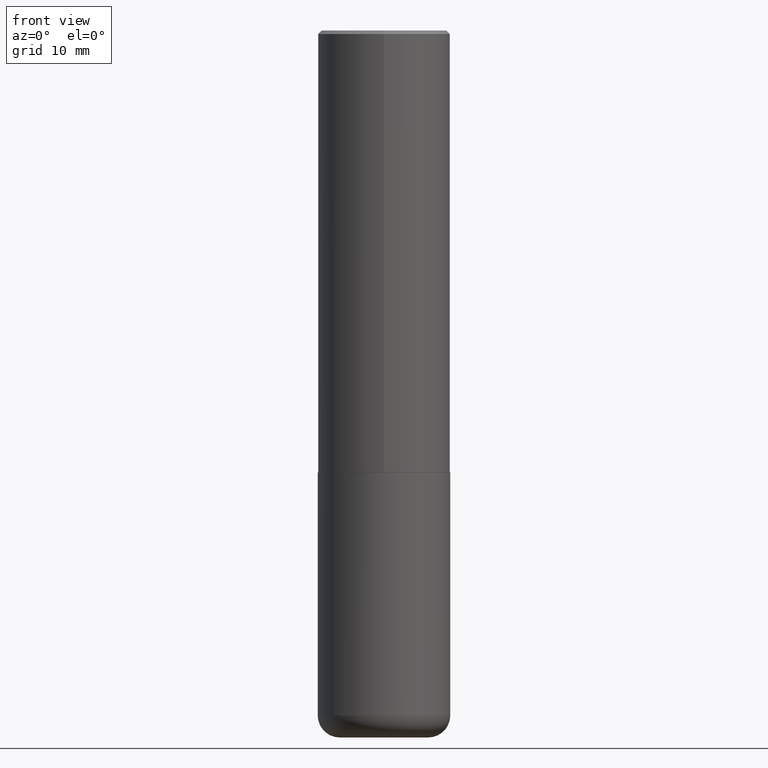
[diagram: clean part render]
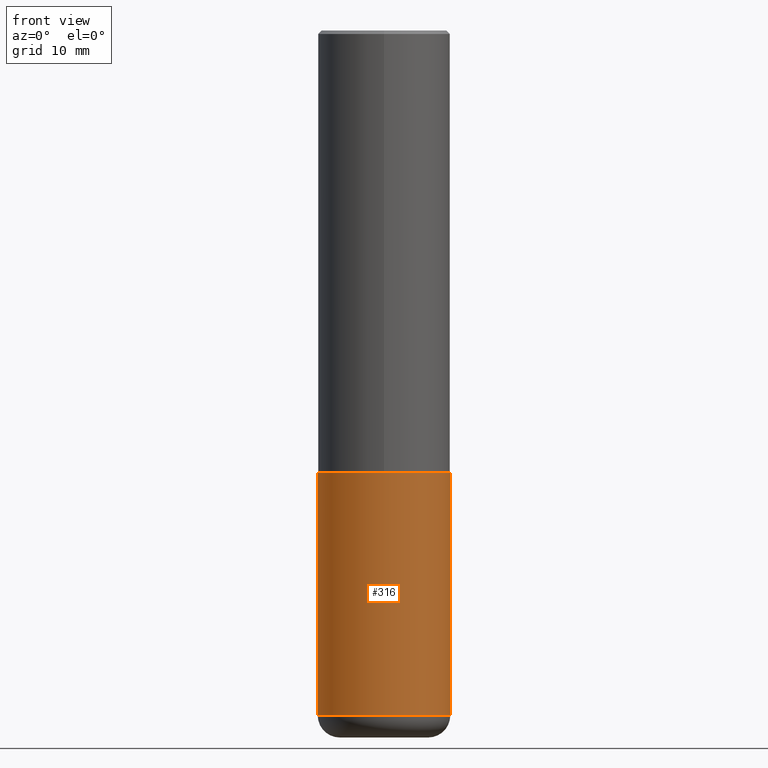
[diagram: same view with one face highlighted and labeled with its STEP entity id]
A machine part, front view. The second image highlights one B-rep face of the part: STEP entity #316.
In plain terms, the highlighted cylindrical surface (partial cylindrical patch) has radius 9.525 mm, axis along (-0, 0, 1).
Its self-contained STEP definition (entity closure, byte-faithful):
#6 = CARTESIAN_POINT ( 'NONE',  ( 0.3749999999999999445, -1.614810119214953752E-14, -3.875000000000000000 ) ) ;
#12 = VECTOR ( 'NONE', #139, 39.37007874015748143 ) ;
#15 = CYLINDRICAL_SURFACE ( 'NONE', #101, 0.3749999999999999445 ) ;
#42 = CARTESIAN_POINT ( 'NONE',  ( 0.000000000000000000, 0.000000000000000000, 0.000000000000000000 ) ) ;
#69 = CARTESIAN_POINT ( 'NONE',  ( -0.3749999999999999445, 2.664535259100375303E-15, -1.844600658845589318E-29 ) ) ;
#94 = EDGE_LOOP ( 'NONE', ( #214, #314, #352, #130 ) ) ;
#101 = AXIS2_PLACEMENT_3D ( 'NONE', #42, #104, #356 ) ;
#104 = DIRECTION ( 'NONE',  ( -2.445468806185136597E-29, 3.491481338843145583E-15, 1.000000000000000000 ) ) ;
#123 = AXIS2_PLACEMENT_3D ( 'NONE', #135, #131, #228 ) ;
#124 = CARTESIAN_POINT ( 'NONE',  ( -0.3750000000000000555, -8.464561508462150527E-15, -2.499999999999999556 ) ) ;
#130 = ORIENTED_EDGE ( 'NONE', *, *, #403, .F. ) ;
#131 = DIRECTION ( 'NONE',  ( -2.445468806185136597E-29, 3.491481338843145583E-15, 1.000000000000000000 ) ) ;
#135 = CARTESIAN_POINT ( 'NONE',  ( 6.113672015462840371E-29, -8.728703347107863365E-15, -2.499999999999999556 ) ) ;
#136 = VERTEX_POINT ( 'NONE', #124 ) ;
#139 = DIRECTION ( 'NONE',  ( -2.445468806185136877E-29, 3.491481338843145188E-15, 1.000000000000000000 ) ) ;
#184 = VECTOR ( 'NONE', #264, 39.37007874015748143 ) ;
#201 = CIRCLE ( 'NONE', #123, 0.3750000000000000555 ) ;
#206 = DIRECTION ( 'NONE',  ( 1.000000000000000000, -6.982962677686263555E-15, 0.000000000000000000 ) ) ;
#209 = CARTESIAN_POINT ( 'NONE',  ( -0.3749999999999999445, -1.086495492891681496E-14, -3.875000000000000000 ) ) ;
#214 = ORIENTED_EDGE ( 'NONE', *, *, #232, .F. ) ;
#224 = LINE ( 'NONE', #364, #184 ) ;
#228 = DIRECTION ( 'NONE',  ( 1.000000000000000000, -6.982962677686264344E-15, 0.000000000000000000 ) ) ;
#229 = VERTEX_POINT ( 'NONE', #209 ) ;
#232 = EDGE_CURVE ( 'NONE', #229, #136, #277, .T. ) ;
#238 = VERTEX_POINT ( 'NONE', #6 ) ;
#264 = DIRECTION ( 'NONE',  ( -2.445468806185136877E-29, 3.491481338843145188E-15, 1.000000000000000000 ) ) ;
#267 = EDGE_CURVE ( 'NONE', #229, #238, #405, .T. ) ;
#277 = LINE ( 'NONE', #69, #12 ) ;
#280 = VERTEX_POINT ( 'NONE', #344 ) ;
#314 = ORIENTED_EDGE ( 'NONE', *, *, #267, .T. ) ;
#315 = FACE_OUTER_BOUND ( 'NONE', #94, .T. ) ;
#316 = ADVANCED_FACE ( 'NONE', ( #315 ), #15, .T. ) ;
#338 = CARTESIAN_POINT ( 'NONE',  ( 9.476191623967404313E-29, -1.352949018801718908E-14, -3.875000000000000000 ) ) ;
#344 = CARTESIAN_POINT ( 'NONE',  ( 0.3750000000000000555, -1.134731435124021180E-14, -2.499999999999999556 ) ) ;
#352 = ORIENTED_EDGE ( 'NONE', *, *, #370, .T. ) ;
#356 = DIRECTION ( 'NONE',  ( 1.000000000000000000, -6.982962677686266711E-15, 4.876176775795935793E-29 ) ) ;
#364 = CARTESIAN_POINT ( 'NONE',  ( 0.3749999999999999445, -2.618611004132349622E-15, 1.828566290923475642E-29 ) ) ;
#366 = AXIS2_PLACEMENT_3D ( 'NONE', #338, #373, #206 ) ;
#370 = EDGE_CURVE ( 'NONE', #238, #280, #224, .T. ) ;
#373 = DIRECTION ( 'NONE',  ( -2.445468806185136597E-29, 3.491481338843145583E-15, 1.000000000000000000 ) ) ;
#403 = EDGE_CURVE ( 'NONE', #136, #280, #201, .T. ) ;
#405 = CIRCLE ( 'NONE', #366, 0.3749999999999999445 ) ;